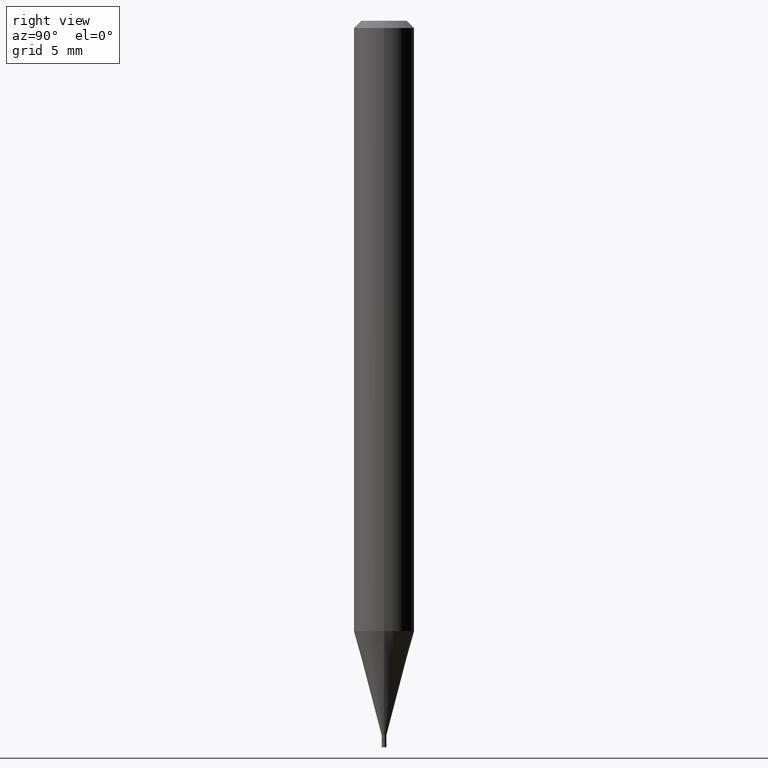
[diagram: clean part render]
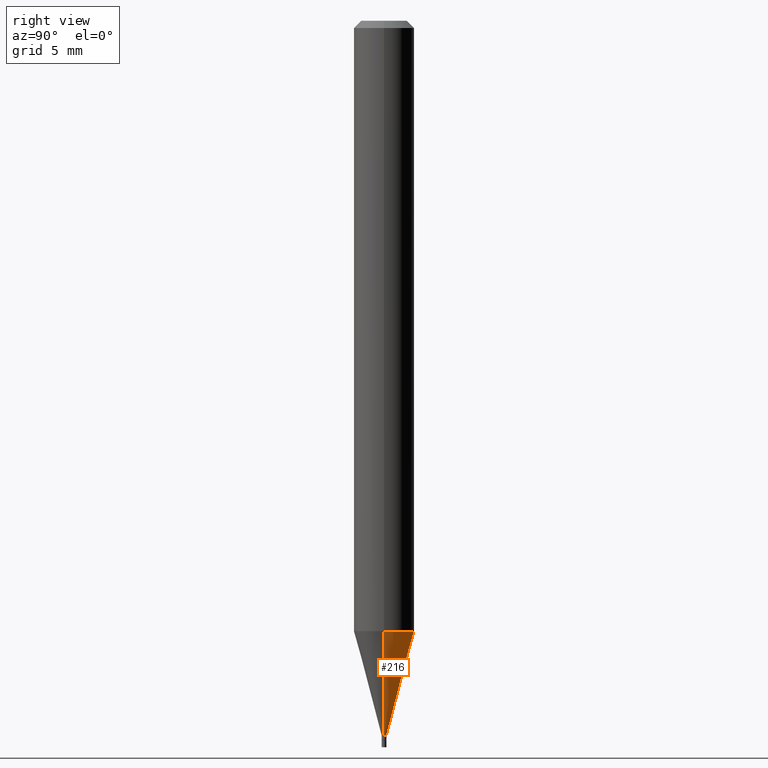
[diagram: same view with one face highlighted and labeled with its STEP entity id]
A machine part, right view. The second image highlights one B-rep face of the part: STEP entity #216.
In plain terms, the highlighted conical surface has half-angle 15 deg.
Its self-contained STEP definition (entity closure, byte-faithful):
#17 = AXIS2_PLACEMENT_3D ( 'NONE', #292, #142, #37 ) ;
#24 = CARTESIAN_POINT ( 'NONE',  ( 3.607066489123076592E-29, -5.149934974793640632E-15, -1.475000000000000311 ) ) ;
#27 = VECTOR ( 'NONE', #324, 39.37007874015747433 ) ;
#37 = DIRECTION ( 'NONE',  ( 1.000000000000000000, -6.982962677686247778E-15, 0.000000000000000000 ) ) ;
#38 = LINE ( 'NONE', #466, #389 ) ;
#68 = CARTESIAN_POINT ( 'NONE',  ( 0.004999999999999922042, -5.184849788182071492E-15, -1.475000000000000311 ) ) ;
#82 = EDGE_LOOP ( 'NONE', ( #98, #148, #419, #279 ) ) ;
#98 = ORIENTED_EDGE ( 'NONE', *, *, #423, .T. ) ;
#101 = CARTESIAN_POINT ( 'NONE',  ( 0.004999999999999922042, -5.184849788182071492E-15, -1.475000000000000311 ) ) ;
#135 = DIRECTION ( 'NONE',  ( 1.000000000000000000, -6.982962677686247778E-15, 0.000000000000000000 ) ) ;
#142 = DIRECTION ( 'NONE',  ( -2.445468806185136597E-29, 3.491481338843145583E-15, 1.000000000000000000 ) ) ;
#144 = DIRECTION ( 'NONE',  ( -0.2588190451025213501, 5.211531920934551042E-15, 0.9659258262890682012 ) ) ;
#148 = ORIENTED_EDGE ( 'NONE', *, *, #443, .T. ) ;
#174 = VERTEX_POINT ( 'NONE', #420 ) ;
#183 = LINE ( 'NONE', #68, #27 ) ;
#210 = AXIS2_PLACEMENT_3D ( 'NONE', #24, #422, #135 ) ;
#216 = ADVANCED_FACE ( 'NONE', ( #284 ), #280, .T. ) ;
#222 = CIRCLE ( 'NONE', #17, 0.004999999999999922042 ) ;
#249 = AXIS2_PLACEMENT_3D ( 'NONE', #325, #362, #323 ) ;
#257 = CARTESIAN_POINT ( 'NONE',  ( 0.06249999999999999306, -4.837122961510163228E-15, -1.260407078564790062 ) ) ;
#274 = VERTEX_POINT ( 'NONE', #390 ) ;
#279 = ORIENTED_EDGE ( 'NONE', *, *, #431, .F. ) ;
#280 = CONICAL_SURFACE ( 'NONE', #210, 0.004999999999999922042, 0.2617993877991500740 ) ;
#284 = FACE_OUTER_BOUND ( 'NONE', #82, .T. ) ;
#292 = CARTESIAN_POINT ( 'NONE',  ( 3.607066489123076592E-29, -5.149934974793640632E-15, -1.475000000000000311 ) ) ;
#323 = DIRECTION ( 'NONE',  ( 1.000000000000000000, -6.982962677686262766E-15, 0.000000000000000000 ) ) ;
#324 = DIRECTION ( 'NONE',  ( 0.2588190451025213501, 1.565188264969621968E-15, 0.9659258262890682012 ) ) ;
#325 = CARTESIAN_POINT ( 'NONE',  ( 3.082286193725132894E-29, -4.400687794154770769E-15, -1.260407078564790062 ) ) ;
#326 = EDGE_CURVE ( 'NONE', #392, #174, #328, .T. ) ;
#328 = CIRCLE ( 'NONE', #249, 0.06250000000000000000 ) ;
#362 = DIRECTION ( 'NONE',  ( -2.445468806185136597E-29, 3.491481338843145583E-15, 1.000000000000000000 ) ) ;
#383 = VERTEX_POINT ( 'NONE', #101 ) ;
#389 = VECTOR ( 'NONE', #144, 39.37007874015747433 ) ;
#390 = CARTESIAN_POINT ( 'NONE',  ( -0.004999999999999922042, -4.535503211155172266E-15, -1.475000000000000311 ) ) ;
#392 = VERTEX_POINT ( 'NONE', #257 ) ;
#419 = ORIENTED_EDGE ( 'NONE', *, *, #326, .F. ) ;
#420 = CARTESIAN_POINT ( 'NONE',  ( -0.06249999999999999306, -3.956598584304708153E-15, -1.260407078564790062 ) ) ;
#422 = DIRECTION ( 'NONE',  ( -2.445468806185136597E-29, 3.491481338843145583E-15, 1.000000000000000000 ) ) ;
#423 = EDGE_CURVE ( 'NONE', #383, #274, #222, .T. ) ;
#431 = EDGE_CURVE ( 'NONE', #383, #392, #183, .T. ) ;
#443 = EDGE_CURVE ( 'NONE', #274, #174, #38, .T. ) ;
#466 = CARTESIAN_POINT ( 'NONE',  ( -0.004999999999999922042, -5.114407838005636380E-15, -1.475000000000000311 ) ) ;